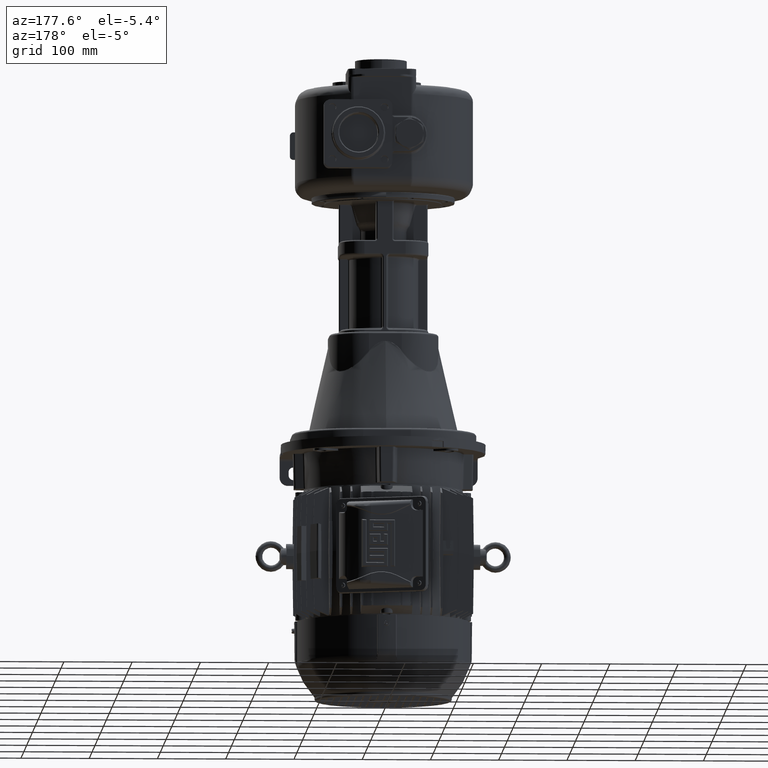
[diagram: clean part render]
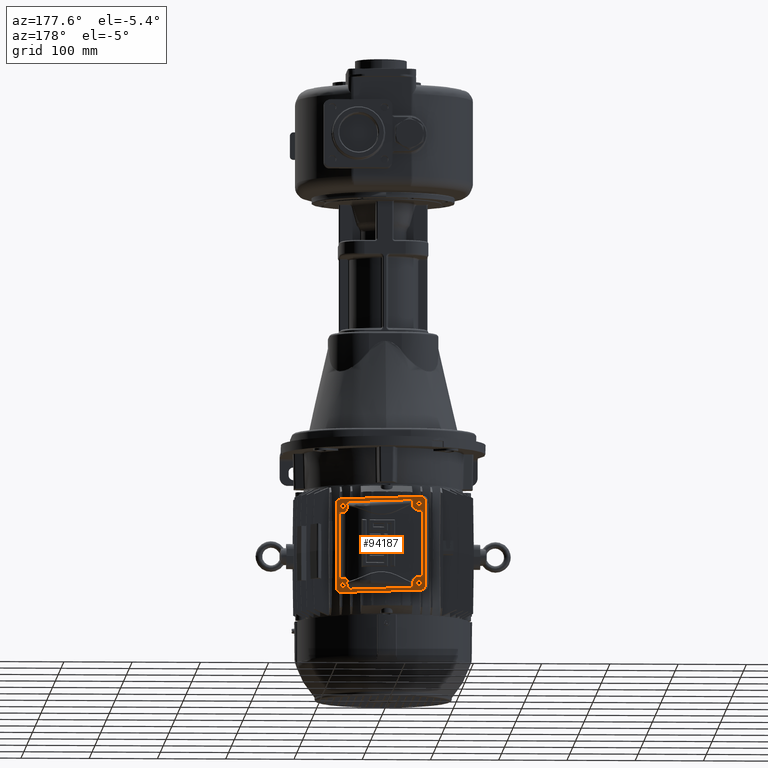
[diagram: same view with one face highlighted and labeled with its STEP entity id]
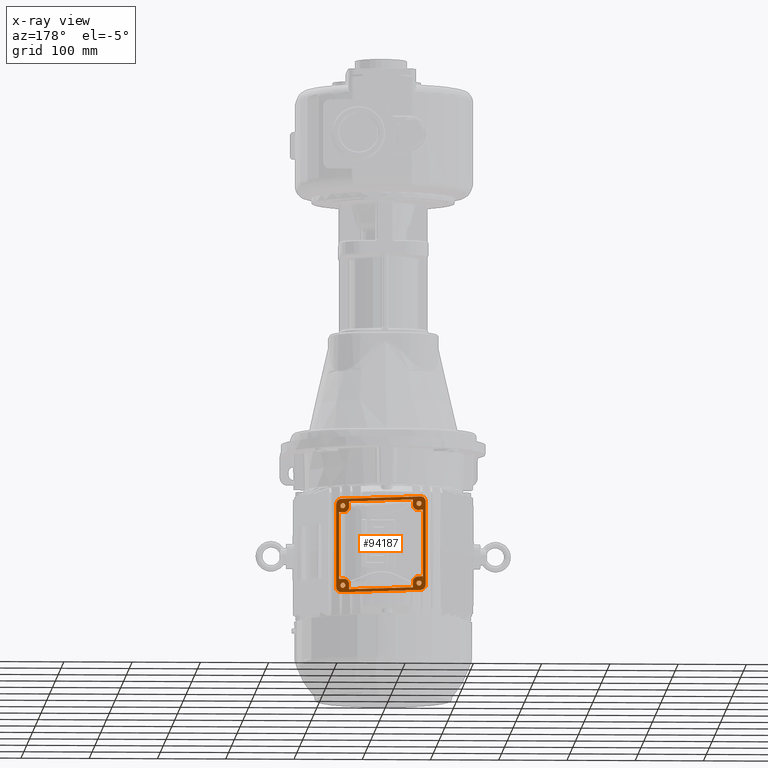
[diagram: x-ray of the same camera — body ghosted, the highlighted face saturated]
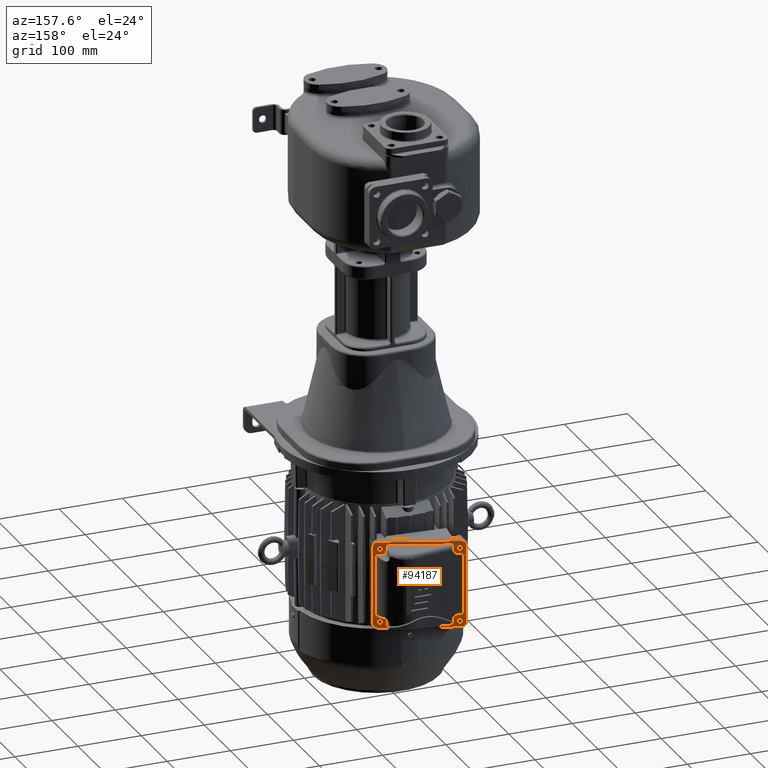
[diagram: same view with one face highlighted and labeled with its STEP entity id]
A machine part, auxiliary view. The second image highlights one B-rep face of the part: STEP entity #94187.
The next image is the same camera in x-ray: the body ghosted, the highlighted face saturated — about 0% of this face is hidden behind the body in this view.
A second angle (auxiliary view) of the same face is appended — the face is thin or edge-on in the first view.
In plain terms, the highlighted planar face has unit normal (-0.342, -0.9397, 0).
Its self-contained STEP definition (entity closure, byte-faithful):
#29858=DIRECTION('',(3.419254845926E-13,9.802641879106E-14,1.E0));
#29859=VECTOR('',#29858,1.217744982219E2);
#29860=CARTESIAN_POINT('',(7.601840702169E1,3.039903845790E2,
-6.794873491108E2));
#29861=LINE('',#29860,#29859);
#29874=DIRECTION('',(-3.415680436904E-13,-9.744586090424E-14,-1.E0));
#29875=VECTOR('',#29874,9.8E1);
#29876=CARTESIAN_POINT('',(-4.921039833566E1,3.495699422018E2,
-5.696000999998E2));
#29877=LINE('',#29876,#29875);
#29878=CARTESIAN_POINT('',(-4.357224261099E1,3.475178213418E2,
-6.771000999998E2));
#29879=DIRECTION('',(-3.420201433257E-1,-9.396926207859E-1,3.136627558594E-13));
#29880=DIRECTION('',(9.396926207859E-1,-3.420201433257E-1,1.394558542718E-12));
#29881=AXIS2_PLACEMENT_3D('',#29878,#29879,#29880);
#29883=CARTESIAN_POINT('',(-4.357224261099E1,3.475178213418E2,
-6.771000999998E2));
#29884=DIRECTION('',(-3.420201433257E-1,-9.396926207859E-1,3.136627558594E-13));
#29885=DIRECTION('',(-9.396926207859E-1,3.420201433257E-1,1.394558542718E-12));
#29886=AXIS2_PLACEMENT_3D('',#29883,#29884,#29885);
#29888=CARTESIAN_POINT('',(6.637179402097E1,3.075014645727E2,
-6.771000999999E2));
#29889=DIRECTION('',(-3.420201433257E-1,-9.396926207859E-1,3.136627558594E-13));
#29890=DIRECTION('',(9.396926207859E-1,-3.420201433257E-1,2.825496873508E-11));
#29891=AXIS2_PLACEMENT_3D('',#29888,#29889,#29890);
#29893=CARTESIAN_POINT('',(6.637179402097E1,3.075014645727E2,
-6.771000999999E2));
#29894=DIRECTION('',(-3.420201433257E-1,-9.396926207859E-1,3.136627558594E-13));
#29895=DIRECTION('',(-9.396926207859E-1,3.420201433257E-1,2.825496873508E-11));
#29896=AXIS2_PLACEMENT_3D('',#29893,#29894,#29895);
#29898=CARTESIAN_POINT('',(6.637179402097E1,3.075014645727E2,
-5.601000999999E2));
#29899=DIRECTION('',(-3.420201433257E-1,-9.396926207859E-1,3.136627558594E-13));
#29900=DIRECTION('',(9.396926207859E-1,-3.420201433257E-1,2.825496873508E-11));
#29901=AXIS2_PLACEMENT_3D('',#29898,#29899,#29900);
#29903=CARTESIAN_POINT('',(6.637179402097E1,3.075014645727E2,
-5.601000999999E2));
#29904=DIRECTION('',(-3.420201433257E-1,-9.396926207859E-1,3.136627558594E-13));
#29905=DIRECTION('',(-9.396926207859E-1,3.420201433257E-1,2.825496873508E-11));
#29906=AXIS2_PLACEMENT_3D('',#29903,#29904,#29905);
#29908=CARTESIAN_POINT('',(-4.357224261099E1,3.475178213418E2,
-5.601000999998E2));
#29909=DIRECTION('',(-3.420201433257E-1,-9.396926207859E-1,3.136627558594E-13));
#29910=DIRECTION('',(9.396926207859E-1,-3.420201433257E-1,1.394558542718E-12));
#29911=AXIS2_PLACEMENT_3D('',#29908,#29909,#29910);
#29913=CARTESIAN_POINT('',(-4.357224261099E1,3.475178213418E2,
-5.601000999998E2));
#29914=DIRECTION('',(-3.420201433257E-1,-9.396926207859E-1,3.136627558594E-13));
#29915=DIRECTION('',(-9.396926207859E-1,3.420201433257E-1,1.394558542718E-12));
#29916=AXIS2_PLACEMENT_3D('',#29913,#29914,#29915);
#29926=DIRECTION('',(-9.396926207859E-1,3.420201433257E-1,2.875441617871E-13));
#29927=VECTOR('',#29926,1.217744982219E2);
#29928=CARTESIAN_POINT('',(6.861507439450E1,3.066849772897E2,
-5.498343888649E2));
#29929=LINE('',#29928,#29927);
#29934=CARTESIAN_POINT('',(-4.581552298450E1,3.483343086250E2,
-5.498343888648E2));
#29935=CARTESIAN_POINT('',(-4.612399517730E1,3.484465833212E2,
-5.498343888648E2));
#29936=CARTESIAN_POINT('',(-4.670414425737E1,3.486577403178E2,
-5.498735456111E2));
#29937=CARTESIAN_POINT('',(-4.775461011700E1,3.490400786228E2,
-5.500687401965E2));
#29938=CARTESIAN_POINT('',(-4.890318116844E1,3.494581242975E2,
-5.504878026685E2));
#29939=CARTESIAN_POINT('',(-5.008351436382E1,3.498877304471E2,
-5.512013338239E2));
#29940=CARTESIAN_POINT('',(-5.109127646332E1,3.502545258546E2,
-5.520985113037E2));
#29941=CARTESIAN_POINT('',(-5.193434752061E1,3.505613786248E2,
-5.531709493299E2));
#29942=CARTESIAN_POINT('',(-5.260484748203E1,3.508054206528E2,
-5.544270336805E2));
#29943=CARTESIAN_POINT('',(-5.299863739458E1,3.509487484596E2,
-5.556493174636E2));
#29944=CARTESIAN_POINT('',(-5.318206030615E1,3.510155089397E2,
-5.567671998821E2));
#29945=CARTESIAN_POINT('',(-5.321885561168E1,3.510289013356E2,
-5.573845816379E2));
#29946=CARTESIAN_POINT('',(-5.321885561168E1,3.510289013356E2,
-5.577128508889E2));
#29970=DIRECTION('',(-3.425673242395E-13,-9.989358867279E-14,-1.E0));
#29971=VECTOR('',#29970,1.217744982219E2);
#29972=CARTESIAN_POINT('',(-5.321885561166E1,3.510289013356E2,
-5.577128508889E2));
#29973=LINE('',#29972,#29971);
#29978=CARTESIAN_POINT('',(-5.321885561170E1,3.510289013356E2,
-6.794873491108E2));
#29979=CARTESIAN_POINT('',(-5.321885561170E1,3.510289013356E2,
-6.798156183618E2));
#29980=CARTESIAN_POINT('',(-5.318206030617E1,3.510155089396E2,
-6.804330001175E2));
#29981=CARTESIAN_POINT('',(-5.299863739461E1,3.509487484595E2,
-6.815508825361E2));
#29982=CARTESIAN_POINT('',(-5.260484748206E1,3.508054206528E2,
-6.827731663191E2));
#29983=CARTESIAN_POINT('',(-5.193434752064E1,3.505613786248E2,
-6.840292506698E2));
#29984=CARTESIAN_POINT('',(-5.109127646334E1,3.502545258545E2,
-6.851016886960E2));
#29985=CARTESIAN_POINT('',(-5.008351436384E1,3.498877304471E2,
-6.859988661758E2));
#29986=CARTESIAN_POINT('',(-4.890318116846E1,3.494581242975E2,
-6.867123973312E2));
#29987=CARTESIAN_POINT('',(-4.775461011702E1,3.490400786228E2,
-6.871314598031E2));
#29988=CARTESIAN_POINT('',(-4.670414425739E1,3.486577403178E2,
-6.873266543886E2));
#29989=CARTESIAN_POINT('',(-4.612399517732E1,3.484465833212E2,
-6.873658111349E2));
#29990=CARTESIAN_POINT('',(-4.581552298452E1,3.483343086249E2,
-6.873658111349E2));
#30006=DIRECTION('',(9.396926207859E-1,-3.420201433257E-1,-2.866105768462E-13));
#30007=VECTOR('',#30006,1.217744982219E2);
#30008=CARTESIAN_POINT('',(-4.581552298452E1,3.483343086249E2,
-6.873658111349E2));
#30009=LINE('',#30008,#30007);
#30022=CARTESIAN_POINT('',(6.861507439450E1,3.066849772897E2,
-6.873658111350E2));
#30023=CARTESIAN_POINT('',(6.892354658730E1,3.065727025934E2,
-6.873658111350E2));
#30024=CARTESIAN_POINT('',(6.950369566738E1,3.063615455968E2,
-6.873266543887E2));
#30025=CARTESIAN_POINT('',(7.055416152702E1,3.059792072918E2,
-6.871314598032E2));
#30026=CARTESIAN_POINT('',(7.170273257847E1,3.055611616171E2,
-6.867123973313E2));
#30027=CARTESIAN_POINT('',(7.288306577386E1,3.051315554675E2,
-6.859988661759E2));
#30028=CARTESIAN_POINT('',(7.389082787336E1,3.047647600600E2,
-6.851016886961E2));
#30029=CARTESIAN_POINT('',(7.473389893065E1,3.044579072898E2,
-6.840292506698E2));
#30030=CARTESIAN_POINT('',(7.540439889207E1,3.042138652618E2,
-6.827731663192E2));
#30031=CARTESIAN_POINT('',(7.579818880461E1,3.040705374551E2,
-6.815508825361E2));
#30032=CARTESIAN_POINT('',(7.598161171617E1,3.040037769750E2,
-6.804330001175E2));
#30033=CARTESIAN_POINT('',(7.601840702169E1,3.039903845790E2,
-6.798156183618E2));
#30034=CARTESIAN_POINT('',(7.601840702168E1,3.039903845790E2,
-6.794873491108E2));
#30050=CARTESIAN_POINT('',(7.601840702169E1,3.039903845790E2,
-5.577128508889E2));
#30051=CARTESIAN_POINT('',(7.601840702169E1,3.039903845790E2,
-5.573845816379E2));
#30052=CARTESIAN_POINT('',(7.598161171615E1,3.040037769750E2,
-5.567671998822E2));
#30053=CARTESIAN_POINT('',(7.579818880457E1,3.040705374551E2,
-5.556493174636E2));
#30054=CARTESIAN_POINT('',(7.540439889201E1,3.042138652618E2,
-5.544270336806E2));
#30055=CARTESIAN_POINT('',(7.473389893059E1,3.044579072899E2,
-5.531709493299E2));
#30056=CARTESIAN_POINT('',(7.389082787330E1,3.047647600601E2,
-5.520985113037E2));
#30057=CARTESIAN_POINT('',(7.288306577379E1,3.051315554675E2,
-5.512013338239E2));
#30058=CARTESIAN_POINT('',(7.170273257842E1,3.055611616172E2,
-5.504878026686E2));
#30059=CARTESIAN_POINT('',(7.055416152698E1,3.059792072918E2,
-5.500687401966E2));
#30060=CARTESIAN_POINT('',(6.950369566737E1,3.063615455969E2,
-5.498735456112E2));
#30061=CARTESIAN_POINT('',(6.892354658730E1,3.065727025934E2,
-5.498343888649E2));
#30062=CARTESIAN_POINT('',(6.861507439451E1,3.066849772897E2,
-5.498343888649E2));
#30078=DIRECTION('',(-9.396926207858E-1,3.420201433258E-1,2.834139150840E-13));
#30079=VECTOR('',#30078,7.621537975899E0);
#30080=CARTESIAN_POINT('',(-4.204849534070E1,3.469632226909E2,
-6.676000999998E2));
#30081=LINE('',#30080,#30079);
#30194=DIRECTION('',(-3.421477198545E-13,-1.044156529256E-13,-1.E0));
#30195=VECTOR('',#30194,7.621537975903E0);
#30196=CARTESIAN_POINT('',(5.744471412350E1,3.107506559343E2,
-6.754785620240E2));
#30197=LINE('',#30196,#30195);
#30210=DIRECTION('',(-9.396926207859E-1,3.420201433257E-1,2.876973036220E-13));
#30211=VECTOR('',#30210,9.8E1);
#30212=CARTESIAN_POINT('',(5.744471412350E1,3.107506559343E2,
-6.831000999999E2));
#30213=LINE('',#30212,#30211);
#30226=DIRECTION('',(3.617256547766E-13,1.342486966181E-13,1.E0));
#30227=VECTOR('',#30226,7.621537975934E0);
#30228=CARTESIAN_POINT('',(-3.464516271352E1,3.442686299803E2,
-6.831000999999E2));
#30229=LINE('',#30228,#30227);
#30454=CARTESIAN_POINT('',(-3.464516271352E1,3.442686299803E2,
-6.754785620239E2));
#30455=CARTESIAN_POINT('',(-3.464516271352E1,3.442686299803E2,
-6.751502927729E2));
#30456=CARTESIAN_POINT('',(-3.468195801905E1,3.442820223762E2,
-6.745329110172E2));
#30457=CARTESIAN_POINT('',(-3.486538093061E1,3.443487828563E2,
-6.734150285986E2));
#30458=CARTESIAN_POINT('',(-3.525917084316E1,3.444921106630E2,
-6.721927448156E2));
#30459=CARTESIAN_POINT('',(-3.592967080459E1,3.447361526911E2,
-6.709366604649E2));
#30460=CARTESIAN_POINT('',(-3.677274186188E1,3.450430054613E2,
-6.698642224387E2));
#30461=CARTESIAN_POINT('',(-3.778050396138E1,3.454098008687E2,
-6.689670449589E2));
#30462=CARTESIAN_POINT('',(-3.896083715676E1,3.458394070184E2,
-6.682535138035E2));
#30463=CARTESIAN_POINT('',(-4.010940820820E1,3.462574526930E2,
-6.678344513316E2));
#30464=CARTESIAN_POINT('',(-4.115987406783E1,3.466397909981E2,
-6.676392567461E2));
#30465=CARTESIAN_POINT('',(-4.174002314790E1,3.468509479946E2,
-6.676000999998E2));
#30466=CARTESIAN_POINT('',(-4.204849534070E1,3.469632226909E2,
-6.676000999998E2));
#30523=CARTESIAN_POINT('',(6.484804675069E1,3.080560632237E2,
-6.676000999999E2));
#30524=CARTESIAN_POINT('',(6.453957455790E1,3.081683379200E2,
-6.676000999999E2));
#30525=CARTESIAN_POINT('',(6.395942547783E1,3.083794949165E2,
-6.676392567462E2));
#30526=CARTESIAN_POINT('',(6.290895961821E1,3.087618332215E2,
-6.678344513316E2));
#30527=CARTESIAN_POINT('',(6.176038856677E1,3.091798788962E2,
-6.682535138036E2));
#30528=CARTESIAN_POINT('',(6.058005537140E1,3.096094850458E2,
-6.689670449590E2));
#30529=CARTESIAN_POINT('',(5.957229327190E1,3.099762804533E2,
-6.698642224387E2));
#30530=CARTESIAN_POINT('',(5.872922221460E1,3.102831332235E2,
-6.709366604650E2));
#30531=CARTESIAN_POINT('',(5.805872225318E1,3.105271752515E2,
-6.721927448156E2));
#30532=CARTESIAN_POINT('',(5.766493234062E1,3.106705030583E2,
-6.734150285986E2));
#30533=CARTESIAN_POINT('',(5.748150942904E1,3.107372635384E2,
-6.745329110172E2));
#30534=CARTESIAN_POINT('',(5.744471412350E1,3.107506559343E2,
-6.751502927729E2));
#30535=CARTESIAN_POINT('',(5.744471412350E1,3.107506559343E2,
-6.754785620239E2));
#30548=CARTESIAN_POINT('',(7.200994974568E1,3.054493437128E2,
-6.676000999999E2));
#30556=DIRECTION('',(-3.625218039592E-14,-9.860593067691E-14,-1.E0));
#30557=VECTOR('',#30556,9.8E1);
#30558=CARTESIAN_POINT('',(7.200994974569E1,3.054493437128E2,
-5.696000999999E2));
#30559=LINE('',#30558,#30557);
#30699=DIRECTION('',(-9.396926207859E-1,3.420201433257E-1,-1.521485228345E-12));
#30700=VECTOR('',#30699,7.621537975902E0);
#30701=CARTESIAN_POINT('',(7.200994974568E1,3.054493437128E2,
-6.676000999999E2));
#30702=LINE('',#30701,#30700);
#30707=DIRECTION('',(9.396926207859E-1,-3.420201433256E-1,1.521485228345E-12));
#30708=VECTOR('',#30707,7.621537975902E0);
#30709=CARTESIAN_POINT('',(6.484804675069E1,3.080560632237E2,
-5.696000999999E2));
#30710=LINE('',#30709,#30708);
#30770=CARTESIAN_POINT('',(5.744471412351E1,3.107506559344E2,
-5.617216379757E2));
#30771=CARTESIAN_POINT('',(5.744471412350E1,3.107506559344E2,
-5.620499072267E2));
#30772=CARTESIAN_POINT('',(5.748150942902E1,3.107372635384E2,
-5.626672889825E2));
#30773=CARTESIAN_POINT('',(5.766493234058E1,3.106705030583E2,
-5.637851714010E2));
#30774=CARTESIAN_POINT('',(5.805872225312E1,3.105271752516E2,
-5.650074551841E2));
#30775=CARTESIAN_POINT('',(5.872922221454E1,3.102831332236E2,
-5.662635395348E2));
#30776=CARTESIAN_POINT('',(5.957229327183E1,3.099762804533E2,
-5.673359775610E2));
#30777=CARTESIAN_POINT('',(6.058005537134E1,3.096094850459E2,
-5.682331550408E2));
#30778=CARTESIAN_POINT('',(6.176038856672E1,3.091798788963E2,
-5.689466861962E2));
#30779=CARTESIAN_POINT('',(6.290895961817E1,3.087618332216E2,
-5.693657486682E2));
#30780=CARTESIAN_POINT('',(6.395942547781E1,3.083794949166E2,
-5.695609432537E2));
#30781=CARTESIAN_POINT('',(6.453957455789E1,3.081683379200E2,
-5.696000999999E2));
#30782=CARTESIAN_POINT('',(6.484804675070E1,3.080560632237E2,
-5.696000999999E2));
#30788=DIRECTION('',(-3.412154372392E-13,-1.044156529256E-13,-1.E0));
#30789=VECTOR('',#30788,7.621537975901E0);
#30790=CARTESIAN_POINT('',(5.744471412350E1,3.107506559344E2,
-5.541000999999E2));
#30791=LINE('',#30790,#30789);
#30796=DIRECTION('',(9.396926207859E-1,-3.420201433257E-1,-2.865372338494E-13));
#30797=VECTOR('',#30796,9.8E1);
#30798=CARTESIAN_POINT('',(-3.464516271352E1,3.442686299803E2,
-5.541000999999E2));
#30799=LINE('',#30798,#30797);
#30808=DIRECTION('',(3.673193504720E-13,1.342486966192E-13,1.E0));
#30809=VECTOR('',#30808,7.621537975871E0);
#30810=CARTESIAN_POINT('',(-3.464516271352E1,3.442686299803E2,
-5.617216379757E2));
#30811=LINE('',#30810,#30809);
#30835=CARTESIAN_POINT('',(-4.204849534069E1,3.469632226910E2,
-5.696000999998E2));
#30836=CARTESIAN_POINT('',(-4.174002314789E1,3.468509479947E2,
-5.696000999998E2));
#30837=CARTESIAN_POINT('',(-4.115987406782E1,3.466397909981E2,
-5.695609432536E2));
#30838=CARTESIAN_POINT('',(-4.010940820819E1,3.462574526931E2,
-5.693657486681E2));
#30839=CARTESIAN_POINT('',(-3.896083715674E1,3.458394070184E2,
-5.689466861961E2));
#30840=CARTESIAN_POINT('',(-3.778050396136E1,3.454098008688E2,
-5.682331550408E2));
#30841=CARTESIAN_POINT('',(-3.677274186186E1,3.450430054613E2,
-5.673359775610E2));
#30842=CARTESIAN_POINT('',(-3.592967080456E1,3.447361526911E2,
-5.662635395347E2));
#30843=CARTESIAN_POINT('',(-3.525917084314E1,3.444921106631E2,
-5.650074551841E2));
#30844=CARTESIAN_POINT('',(-3.486538093059E1,3.443487828564E2,
-5.637851714010E2));
#30845=CARTESIAN_POINT('',(-3.468195801903E1,3.442820223763E2,
-5.626672889825E2));
#30846=CARTESIAN_POINT('',(-3.464516271350E1,3.442686299803E2,
-5.620499072267E2));
#30847=CARTESIAN_POINT('',(-3.464516271350E1,3.442686299803E2,
-5.617216379757E2));
#30849=DIRECTION('',(9.396926207853E-1,-3.420201433273E-1,-2.684973932386E-13));
#30850=VECTOR('',#30849,7.621537975866E0);
#30851=CARTESIAN_POINT('',(-4.921039833566E1,3.495699422018E2,
-5.696000999998E2));
#30852=LINE('',#30851,#30850);
#46338=CARTESIAN_POINT('',(5.744471412350E1,3.107506559344E2,
-5.541000999999E2));
#46339=VERTEX_POINT('',#46338);
#46340=CARTESIAN_POINT('',(5.744471412350E1,3.107506559343E2,
-5.617216379758E2));
#46341=VERTEX_POINT('',#46340);
#46357=CARTESIAN_POINT('',(-3.464516271352E1,3.442686299803E2,
-5.617216379757E2));
#46358=CARTESIAN_POINT('',(-3.464516271352E1,3.442686299803E2,
-5.541000999999E2));
#46359=VERTEX_POINT('',#46357);
#46360=VERTEX_POINT('',#46358);
#46364=CARTESIAN_POINT('',(-3.464516271352E1,3.442686299803E2,
-6.831000999999E2));
#46365=VERTEX_POINT('',#46364);
#46366=CARTESIAN_POINT('',(-3.464516271351E1,3.442686299803E2,
-6.754785620239E2));
#46367=VERTEX_POINT('',#46366);
#46375=CARTESIAN_POINT('',(5.744471412350E1,3.107506559343E2,
-6.754785620240E2));
#46376=VERTEX_POINT('',#46375);
#46377=CARTESIAN_POINT('',(5.744471412350E1,3.107506559343E2,
-6.831000999999E2));
#46378=VERTEX_POINT('',#46377);
#46392=CARTESIAN_POINT('',(-4.921039833569E1,3.495699422018E2,
-6.676000999998E2));
#46393=VERTEX_POINT('',#46392);
#46394=CARTESIAN_POINT('',(-4.921039833566E1,3.495699422018E2,
-5.696000999998E2));
#46395=VERTEX_POINT('',#46394);
#46482=VERTEX_POINT('',#30548);
#46486=CARTESIAN_POINT('',(7.200994974569E1,3.054493437128E2,
-5.696000999999E2));
#46487=VERTEX_POINT('',#46486);
#46491=VERTEX_POINT('',#30523);
#46492=CARTESIAN_POINT('',(6.484804675069E1,3.080560632237E2,
-5.696000999999E2));
#46493=VERTEX_POINT('',#46492);
#46494=CARTESIAN_POINT('',(-4.204849534070E1,3.469632226909E2,
-6.676000999998E2));
#46495=VERTEX_POINT('',#46494);
#46496=VERTEX_POINT('',#29978);
#46497=VERTEX_POINT('',#29990);
#46498=CARTESIAN_POINT('',(-5.321885561166E1,3.510289013356E2,
-5.577128508889E2));
#46499=VERTEX_POINT('',#46498);
#46500=VERTEX_POINT('',#29934);
#46501=CARTESIAN_POINT('',(-4.204849534070E1,3.469632226909E2,
-5.696000999998E2));
#46502=VERTEX_POINT('',#46501);
#46505=VERTEX_POINT('',#30050);
#46506=VERTEX_POINT('',#30062);
#46507=CARTESIAN_POINT('',(7.601840702169E1,3.039903845790E2,
-6.794873491108E2));
#46508=VERTEX_POINT('',#46507);
#46509=VERTEX_POINT('',#30022);
#52668=CARTESIAN_POINT('',(-4.004839528304E1,3.462352458044E2,
-6.771000999998E2));
#52669=CARTESIAN_POINT('',(-4.709608993893E1,3.488003968793E2,
-6.771000999998E2));
#52670=VERTEX_POINT('',#52668);
#52671=VERTEX_POINT('',#52669);
#52672=CARTESIAN_POINT('',(6.989564134891E1,3.062188890353E2,
-6.771000999998E2));
#52673=CARTESIAN_POINT('',(6.284794669302E1,3.087840401102E2,
-6.771000999998E2));
#52674=VERTEX_POINT('',#52672);
#52675=VERTEX_POINT('',#52673);
#52676=CARTESIAN_POINT('',(6.989564134891E1,3.062188890353E2,
-5.601000999998E2));
#52677=CARTESIAN_POINT('',(6.284794669302E1,3.087840401102E2,
-5.601000999998E2));
#52678=VERTEX_POINT('',#52676);
#52679=VERTEX_POINT('',#52677);
#52680=CARTESIAN_POINT('',(-4.004839528304E1,3.462352458044E2,
-5.601000999998E2));
#52681=CARTESIAN_POINT('',(-4.709608993893E1,3.488003968793E2,
-5.601000999998E2));
#52682=VERTEX_POINT('',#52680);
#52683=VERTEX_POINT('',#52681);
#94107=CARTESIAN_POINT('',(-4.921039833570E1,3.495699422018E2,
-6.876000999998E2));
#94108=DIRECTION('',(-3.420201433257E-1,-9.396926207859E-1,3.136627558594E-13));
#94109=DIRECTION('',(-1.077738255848E-13,-2.945664682933E-13,-1.E0));
#94110=AXIS2_PLACEMENT_3D('',#94107,#94108,#94109);
#94111=PLANE('',#94110);
#94113=ORIENTED_EDGE('',*,*,#94112,.T.);
#94115=ORIENTED_EDGE('',*,*,#94114,.T.);
#94117=ORIENTED_EDGE('',*,*,#94116,.T.);
#94119=ORIENTED_EDGE('',*,*,#94118,.T.);
#94121=ORIENTED_EDGE('',*,*,#94120,.T.);
#94123=ORIENTED_EDGE('',*,*,#94122,.T.);
#94124=ORIENTED_EDGE('',*,*,#94097,.T.);
#94126=ORIENTED_EDGE('',*,*,#94125,.T.);
#94127=EDGE_LOOP('',(#94113,#94115,#94117,#94119,#94121,#94123,#94124,#94126));
#94128=FACE_OUTER_BOUND('',#94127,.F.);
#94130=ORIENTED_EDGE('',*,*,#94129,.T.);
#94132=ORIENTED_EDGE('',*,*,#94131,.F.);
#94134=ORIENTED_EDGE('',*,*,#94133,.T.);
#94136=ORIENTED_EDGE('',*,*,#94135,.T.);
#94138=ORIENTED_EDGE('',*,*,#94137,.T.);
#94140=ORIENTED_EDGE('',*,*,#94139,.T.);
#94142=ORIENTED_EDGE('',*,*,#94141,.T.);
#94144=ORIENTED_EDGE('',*,*,#94143,.T.);
#94146=ORIENTED_EDGE('',*,*,#94145,.T.);
#94148=ORIENTED_EDGE('',*,*,#94147,.T.);
#94150=ORIENTED_EDGE('',*,*,#94149,.T.);
#94152=ORIENTED_EDGE('',*,*,#94151,.T.);
#94154=ORIENTED_EDGE('',*,*,#94153,.T.);
#94156=ORIENTED_EDGE('',*,*,#94155,.T.);
#94158=ORIENTED_EDGE('',*,*,#94157,.T.);
#94160=ORIENTED_EDGE('',*,*,#94159,.T.);
#94161=EDGE_LOOP('',(#94130,#94132,#94134,#94136,#94138,#94140,#94142,#94144,
#94146,#94148,#94150,#94152,#94154,#94156,#94158,#94160));
#94162=FACE_BOUND('',#94161,.F.);
#94164=ORIENTED_EDGE('',*,*,#94163,.F.);
#94166=ORIENTED_EDGE('',*,*,#94165,.F.);
#94167=EDGE_LOOP('',(#94164,#94166));
#94168=FACE_BOUND('',#94167,.F.);
#94170=ORIENTED_EDGE('',*,*,#94169,.F.);
#94172=ORIENTED_EDGE('',*,*,#94171,.F.);
#94173=EDGE_LOOP('',(#94170,#94172));
#94174=FACE_BOUND('',#94173,.F.);
#94176=ORIENTED_EDGE('',*,*,#94175,.F.);
#94178=ORIENTED_EDGE('',*,*,#94177,.F.);
#94179=EDGE_LOOP('',(#94176,#94178));
#94180=FACE_BOUND('',#94179,.F.);
#94182=ORIENTED_EDGE('',*,*,#94181,.F.);
#94184=ORIENTED_EDGE('',*,*,#94183,.F.);
#94185=EDGE_LOOP('',(#94182,#94184));
#94186=FACE_BOUND('',#94185,.F.);
#94187=ADVANCED_FACE('',(#94128,#94162,#94168,#94174,#94180,#94186),#94111,.F.);
#29882=CIRCLE('',#29881,3.75E0);
#29887=CIRCLE('',#29886,3.75E0);
#29892=CIRCLE('',#29891,3.75E0);
#29897=CIRCLE('',#29896,3.75E0);
#29902=CIRCLE('',#29901,3.75E0);
#29907=CIRCLE('',#29906,3.75E0);
#29912=CIRCLE('',#29911,3.75E0);
#29917=CIRCLE('',#29916,3.75E0);
#29947=B_SPLINE_CURVE_WITH_KNOTS('',3,(#29934,#29935,#29936,#29937,#29938,
#29939,#29940,#29941,#29942,#29943,#29944,#29945,#29946),.UNSPECIFIED.,.F.,.F.,(
4,1,1,1,1,1,1,1,1,1,4),(0.E0,6.25E-2,1.25E-1,2.5E-1,3.75E-1,5.E-1,6.25E-1,
7.5E-1,8.75E-1,9.375E-1,1.E0),.UNSPECIFIED.);
#29991=B_SPLINE_CURVE_WITH_KNOTS('',3,(#29978,#29979,#29980,#29981,#29982,
#29983,#29984,#29985,#29986,#29987,#29988,#29989,#29990),.UNSPECIFIED.,.F.,.F.,(
4,1,1,1,1,1,1,1,1,1,4),(0.E0,6.25E-2,1.25E-1,2.5E-1,3.75E-1,5.E-1,6.25E-1,
7.5E-1,8.75E-1,9.375E-1,1.E0),.UNSPECIFIED.);
#30035=B_SPLINE_CURVE_WITH_KNOTS('',3,(#30022,#30023,#30024,#30025,#30026,
#30027,#30028,#30029,#30030,#30031,#30032,#30033,#30034),.UNSPECIFIED.,.F.,.F.,(
4,1,1,1,1,1,1,1,1,1,4),(0.E0,6.25E-2,1.25E-1,2.5E-1,3.75E-1,5.E-1,6.25E-1,
7.5E-1,8.75E-1,9.375E-1,1.E0),.UNSPECIFIED.);
#30063=B_SPLINE_CURVE_WITH_KNOTS('',3,(#30050,#30051,#30052,#30053,#30054,
#30055,#30056,#30057,#30058,#30059,#30060,#30061,#30062),.UNSPECIFIED.,.F.,.F.,(
4,1,1,1,1,1,1,1,1,1,4),(0.E0,6.25E-2,1.25E-1,2.5E-1,3.75E-1,5.E-1,6.25E-1,
7.5E-1,8.75E-1,9.375E-1,1.E0),.UNSPECIFIED.);
#30467=B_SPLINE_CURVE_WITH_KNOTS('',3,(#30454,#30455,#30456,#30457,#30458,
#30459,#30460,#30461,#30462,#30463,#30464,#30465,#30466),.UNSPECIFIED.,.F.,.F.,(
4,1,1,1,1,1,1,1,1,1,4),(0.E0,6.25E-2,1.25E-1,2.5E-1,3.75E-1,5.E-1,6.25E-1,
7.5E-1,8.75E-1,9.375E-1,1.E0),.UNSPECIFIED.);
#30536=B_SPLINE_CURVE_WITH_KNOTS('',3,(#30523,#30524,#30525,#30526,#30527,
#30528,#30529,#30530,#30531,#30532,#30533,#30534,#30535),.UNSPECIFIED.,.F.,.F.,(
4,1,1,1,1,1,1,1,1,1,4),(0.E0,6.25E-2,1.25E-1,2.5E-1,3.75E-1,5.E-1,6.25E-1,
7.5E-1,8.75E-1,9.375E-1,1.E0),.UNSPECIFIED.);
#30783=B_SPLINE_CURVE_WITH_KNOTS('',3,(#30770,#30771,#30772,#30773,#30774,
#30775,#30776,#30777,#30778,#30779,#30780,#30781,#30782),.UNSPECIFIED.,.F.,.F.,(
4,1,1,1,1,1,1,1,1,1,4),(0.E0,6.25E-2,1.25E-1,2.5E-1,3.75E-1,5.E-1,6.25E-1,
7.5E-1,8.75E-1,9.375E-1,1.E0),.UNSPECIFIED.);
#30848=B_SPLINE_CURVE_WITH_KNOTS('',3,(#30835,#30836,#30837,#30838,#30839,
#30840,#30841,#30842,#30843,#30844,#30845,#30846,#30847),.UNSPECIFIED.,.F.,.F.,(
4,1,1,1,1,1,1,1,1,1,4),(0.E0,6.25E-2,1.25E-1,2.5E-1,3.75E-1,5.E-1,6.25E-1,
7.5E-1,8.75E-1,9.375E-1,1.E0),.UNSPECIFIED.);
#94097=EDGE_CURVE('',#46508,#46505,#29861,.T.);
#94112=EDGE_CURVE('',#46506,#46500,#29929,.T.);
#94114=EDGE_CURVE('',#46500,#46499,#29947,.T.);
#94116=EDGE_CURVE('',#46499,#46496,#29973,.T.);
#94118=EDGE_CURVE('',#46496,#46497,#29991,.T.);
#94120=EDGE_CURVE('',#46497,#46509,#30009,.T.);
#94122=EDGE_CURVE('',#46509,#46508,#30035,.T.);
#94125=EDGE_CURVE('',#46505,#46506,#30063,.T.);
#94129=EDGE_CURVE('',#46495,#46393,#30081,.T.);
#94131=EDGE_CURVE('',#46395,#46393,#29877,.T.);
#94133=EDGE_CURVE('',#46395,#46502,#30852,.T.);
#94135=EDGE_CURVE('',#46502,#46359,#30848,.T.);
#94137=EDGE_CURVE('',#46359,#46360,#30811,.T.);
#94139=EDGE_CURVE('',#46360,#46339,#30799,.T.);
#94141=EDGE_CURVE('',#46339,#46341,#30791,.T.);
#94143=EDGE_CURVE('',#46341,#46493,#30783,.T.);
#94145=EDGE_CURVE('',#46493,#46487,#30710,.T.);
#94147=EDGE_CURVE('',#46487,#46482,#30559,.T.);
#94149=EDGE_CURVE('',#46482,#46491,#30702,.T.);
#94151=EDGE_CURVE('',#46491,#46376,#30536,.T.);
#94153=EDGE_CURVE('',#46376,#46378,#30197,.T.);
#94155=EDGE_CURVE('',#46378,#46365,#30213,.T.);
#94157=EDGE_CURVE('',#46365,#46367,#30229,.T.);
#94159=EDGE_CURVE('',#46367,#46495,#30467,.T.);
#94163=EDGE_CURVE('',#52670,#52671,#29882,.T.);
#94165=EDGE_CURVE('',#52671,#52670,#29887,.T.);
#94169=EDGE_CURVE('',#52674,#52675,#29892,.T.);
#94171=EDGE_CURVE('',#52675,#52674,#29897,.T.);
#94175=EDGE_CURVE('',#52678,#52679,#29902,.T.);
#94177=EDGE_CURVE('',#52679,#52678,#29907,.T.);
#94181=EDGE_CURVE('',#52682,#52683,#29912,.T.);
#94183=EDGE_CURVE('',#52683,#52682,#29917,.T.);